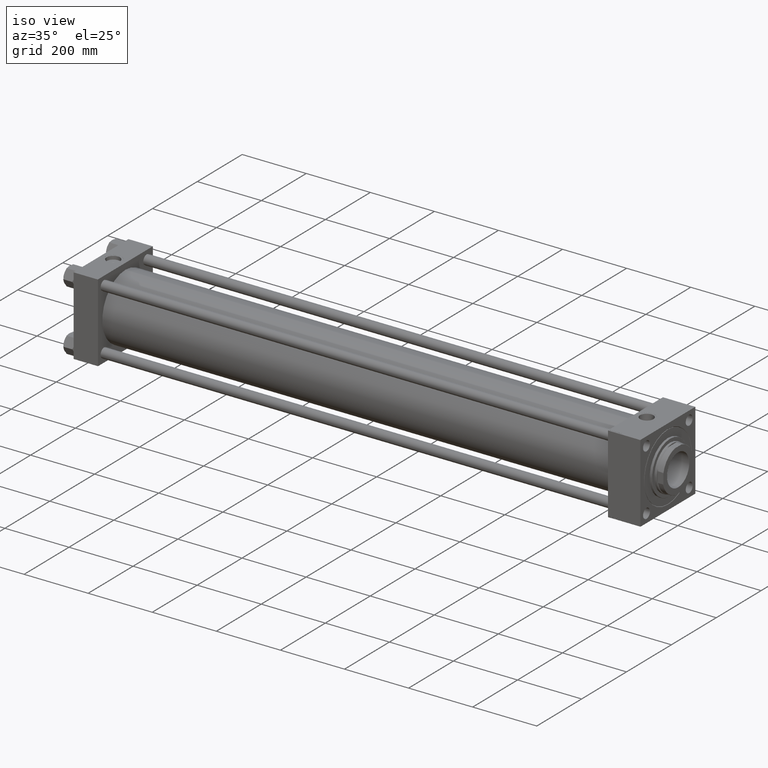
[diagram: clean part render]
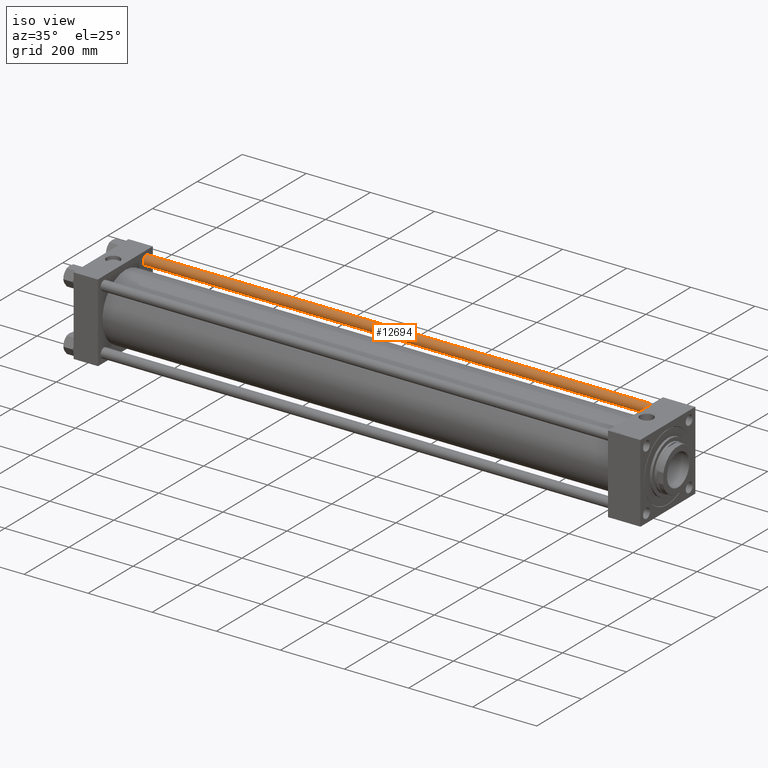
[diagram: same view with one face highlighted and labeled with its STEP entity id]
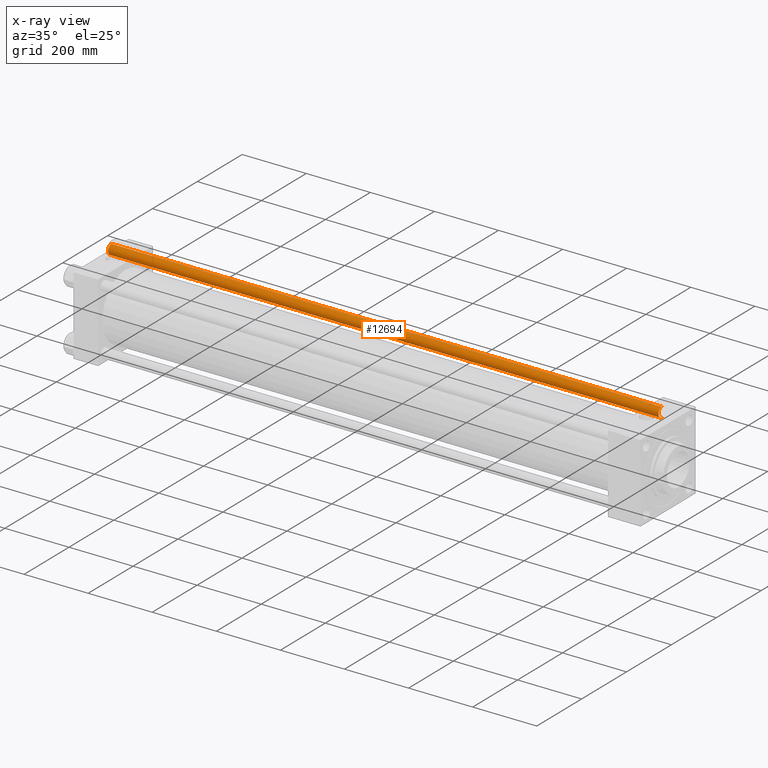
[diagram: x-ray of the same camera — body ghosted, the highlighted face saturated]
A machine part, iso view. The second image highlights one B-rep face of the part: STEP entity #12694.
The next image is the same camera in x-ray: the body ghosted, the highlighted face saturated — about 0% of this face is hidden behind the body in this view.
In plain terms, the highlighted cylindrical surface (edge-blend (fillet) strip) has radius 15 mm, axis along (-1, -0, 0).
Its self-contained STEP definition (entity closure, byte-faithful):
#139 = CARTESIAN_POINT ( 'NONE',  ( 15.00000000000000000, 1.836970198721029589E-15, 0.5000000000003890221 ) ) ;
#780 = LINE ( 'NONE', #8999, #4375 ) ;
#827 = CIRCLE ( 'NONE', #44046, 15.00000000000000000 ) ;
#4375 = VECTOR ( 'NONE', #37909, 1000.000000000000000 ) ;
#4992 = EDGE_CURVE ( 'NONE', #14077, #15994, #780, .T. ) ;
#6554 = FACE_OUTER_BOUND ( 'NONE', #40331, .T. ) ;
#6689 = VECTOR ( 'NONE', #40539, 1000.000000000000000 ) ;
#7348 = DIRECTION ( 'NONE',  ( -0.000000000000000000, -0.000000000000000000, -1.000000000000000000 ) ) ;
#8999 = CARTESIAN_POINT ( 'NONE',  ( 15.00000000000000000, 1.836970198721029589E-15, 1719.000000000000000 ) ) ;
#11042 = ORIENTED_EDGE ( 'NONE', *, *, #16435, .T. ) ;
#11343 = CARTESIAN_POINT ( 'NONE',  ( 0.000000000000000000, 0.000000000000000000, 1719.000000000000000 ) ) ;
#12694 = ADVANCED_FACE ( 'NONE', ( #6554 ), #22720, .T. ) ;
#14077 = VERTEX_POINT ( 'NONE', #20332 ) ;
#14169 = ORIENTED_EDGE ( 'NONE', *, *, #17265, .T. ) ;
#15862 = VERTEX_POINT ( 'NONE', #31710 ) ;
#15994 = VERTEX_POINT ( 'NONE', #139 ) ;
#16398 = DIRECTION ( 'NONE',  ( 0.000000000000000000, 0.000000000000000000, -1.000000000000000000 ) ) ;
#16435 = EDGE_CURVE ( 'NONE', #48703, #15862, #37075, .T. ) ;
#17265 = EDGE_CURVE ( 'NONE', #15862, #15994, #827, .T. ) ;
#17698 = EDGE_CURVE ( 'NONE', #14077, #48703, #38923, .T. ) ;
#20332 = CARTESIAN_POINT ( 'NONE',  ( 15.00000000000000000, 1.836970198721029589E-15, 1718.500000000000000 ) ) ;
#22720 = CYLINDRICAL_SURFACE ( 'NONE', #43849, 15.00000000000000000 ) ;
#26596 = CARTESIAN_POINT ( 'NONE',  ( -15.00000000000000000, 0.000000000000000000, 1718.500000000000000 ) ) ;
#27504 = DIRECTION ( 'NONE',  ( -1.000000000000000000, 0.000000000000000000, 0.000000000000000000 ) ) ;
#28850 = CARTESIAN_POINT ( 'NONE',  ( -15.00000000000000000, 0.000000000000000000, 1719.000000000000000 ) ) ;
#30018 = CARTESIAN_POINT ( 'NONE',  ( 0.000000000000000000, 0.000000000000000000, 0.5000000000003890221 ) ) ;
#31710 = CARTESIAN_POINT ( 'NONE',  ( -15.00000000000000000, 0.000000000000000000, 0.5000000000003890221 ) ) ;
#36566 = CARTESIAN_POINT ( 'NONE',  ( 0.000000000000000000, 0.000000000000000000, 1718.500000000000000 ) ) ;
#36823 = DIRECTION ( 'NONE',  ( 1.000000000000000000, 0.000000000000000000, 0.000000000000000000 ) ) ;
#37075 = LINE ( 'NONE', #28850, #6689 ) ;
#37909 = DIRECTION ( 'NONE',  ( -0.000000000000000000, -0.000000000000000000, -1.000000000000000000 ) ) ;
#38923 = CIRCLE ( 'NONE', #45711, 15.00000000000000000 ) ;
#40331 = EDGE_LOOP ( 'NONE', ( #50547, #47127, #11042, #14169 ) ) ;
#40539 = DIRECTION ( 'NONE',  ( -0.000000000000000000, -0.000000000000000000, -1.000000000000000000 ) ) ;
#43849 = AXIS2_PLACEMENT_3D ( 'NONE', #11343, #7348, #27504 ) ;
#44046 = AXIS2_PLACEMENT_3D ( 'NONE', #30018, #45435, #49690 ) ;
#45435 = DIRECTION ( 'NONE',  ( -0.000000000000000000, -0.000000000000000000, 1.000000000000000000 ) ) ;
#45711 = AXIS2_PLACEMENT_3D ( 'NONE', #36566, #16398, #36823 ) ;
#47127 = ORIENTED_EDGE ( 'NONE', *, *, #17698, .T. ) ;
#48703 = VERTEX_POINT ( 'NONE', #26596 ) ;
#49690 = DIRECTION ( 'NONE',  ( 1.000000000000000000, 0.000000000000000000, 0.000000000000000000 ) ) ;
#50547 = ORIENTED_EDGE ( 'NONE', *, *, #4992, .F. ) ;